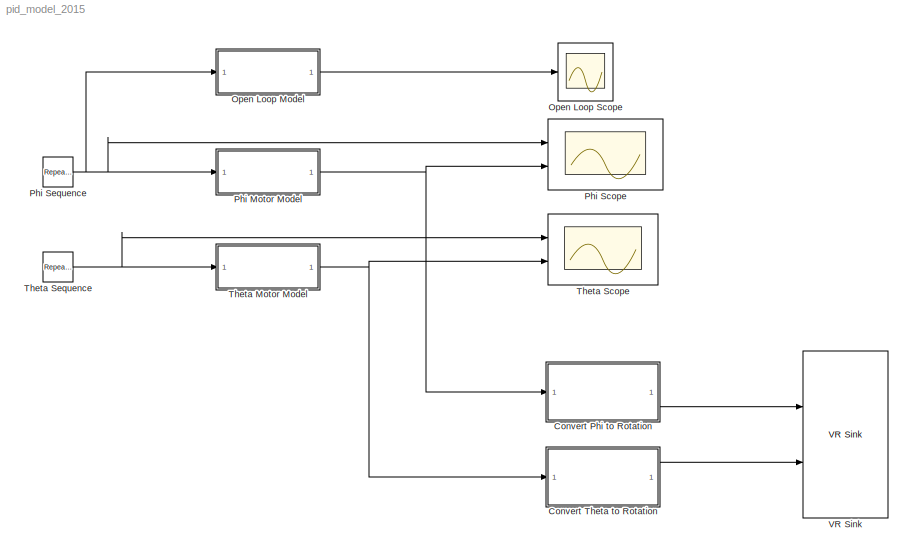
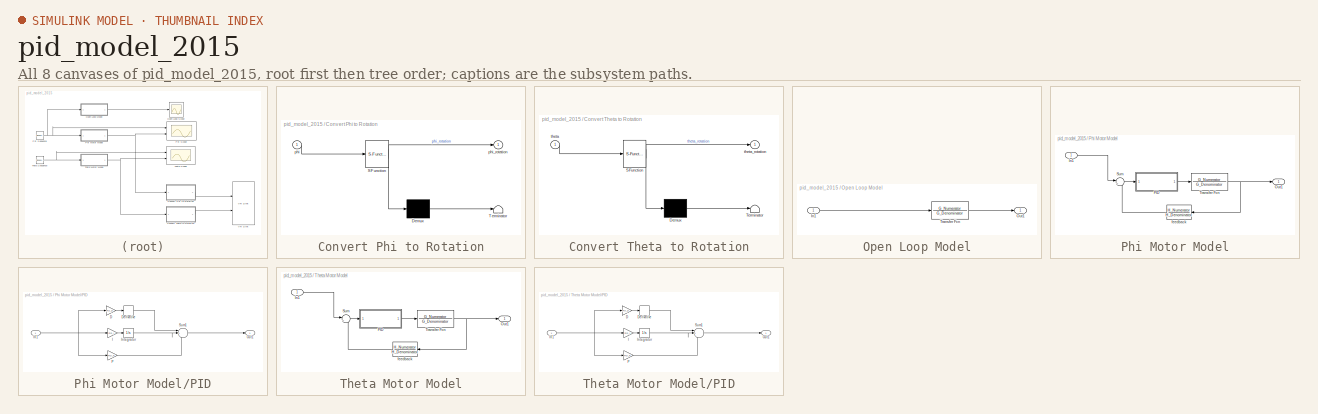
[diagram: thumbnail index - all 8 canvases of the model, root first then tree order]
MODEL pid_model_2015
KIND model
BLOCK [SubSystem] Convert Phi to Rotation
  ErrorFcn = Stateflow.Translate.translate
  PermitHierarchicalResolution = ParametersOnly
  Ports = [1, 1]
  RequestExecContextInheritance = off
  SFBlockType = MATLAB Function
  SID = 94
  TreatAsAtomicUnit = on
  Variant = off
BLOCK [Demux] Convert Phi to Rotation/ Demux 
  Outputs = 1
  Ports = [1, 1]
  SID = 94::28
BLOCK [S-Function] Convert Phi to Rotation/ SFunction 
  EnableBusSupport = on
  FunctionName = sf_sfun
  PortCounts = [1 2]
  Ports = [1, 2]
  SFunctionDeploymentMode = off
  SID = 94::27
  Tag = Stateflow S-Function pid_model_2015 1
BLOCK [Terminator] Convert Phi to Rotation/ Terminator 
  SID = 94::29
BLOCK [Inport] Convert Phi to Rotation/phi
  IconDisplay = Port number
  SID = 94::1
BLOCK [Outport] Convert Phi to Rotation/phi_rotation
  IconDisplay = Port number
  SID = 94::5
BLOCK [SubSystem] Convert Theta to Rotation
  ErrorFcn = Stateflow.Translate.translate
  PermitHierarchicalResolution = ParametersOnly
  Ports = [1, 1]
  RequestExecContextInheritance = off
  SFBlockType = MATLAB Function
  SID = 106
  TreatAsAtomicUnit = on
  Variant = off
BLOCK [Demux] Convert Theta to Rotation/ Demux 
  Outputs = 1
  Ports = [1, 1]
  SID = 106::28
BLOCK [S-Function] Convert Theta to Rotation/ SFunction 
  EnableBusSupport = on
  FunctionName = sf_sfun
  PortCounts = [1 2]
  Ports = [1, 2]
  SFunctionDeploymentMode = off
  SID = 106::27
  Tag = Stateflow S-Function pid_model_2015 2
BLOCK [Terminator] Convert Theta to Rotation/ Terminator 
  SID = 106::29
BLOCK [Inport] Convert Theta to Rotation/theta
  IconDisplay = Port number
  SID = 106::1
BLOCK [Outport] Convert Theta to Rotation/theta_rotation
  IconDisplay = Port number
  SID = 106::5
BLOCK [SubSystem] Open Loop Model
  Ports = [1, 1]
  RequestExecContextInheritance = off
  SID = 49
  Variant = off
BLOCK [Inport] Open Loop Model/In1
  IconDisplay = Port number
  SID = 50
BLOCK [Outport] Open Loop Model/Out1
  IconDisplay = Port number
  SID = 55
BLOCK [TransferFcn] Open Loop Model/Transfer Fcn
  Denominator = G_Denominator
  Numerator = G_Numerator
  SID = 53
BLOCK [Scope] Open Loop Scope
  DataFormat = Array
  Decimation = 1
  Grid = on
  LimitDataPoints = on
  MaxDataPoints = 5000
  NumInputPorts = 1
  Ports = [1]
  SID = 92
  SampleInput = off
  SampleTime = -1
  SaveName = ScopeData2
  SaveToWorkspace = off
  ShowLegends = off
  TickLabels = OneTimeTick
  TimeRange = auto
  YMax = 10
  YMin = -10
  ZoomMode = on
BLOCK [SubSystem] Phi Motor Model
  Ports = [1, 1]
  RequestExecContextInheritance = off
  SID = 28
  Variant = off
BLOCK [Inport] Phi Motor Model/In1
  IconDisplay = Port number
  SID = 29
BLOCK [Outport] Phi Motor Model/Out1
  IconDisplay = Port number
  SID = 34
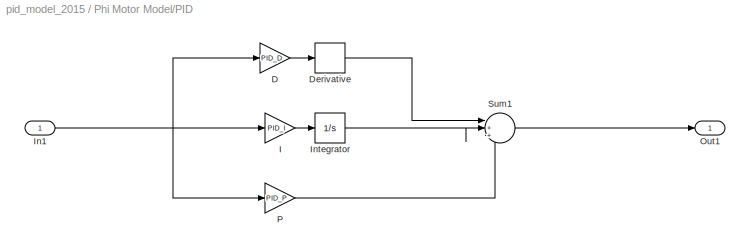
BLOCK [SubSystem] Phi Motor Model/PID
  Ports = [1, 1]
  RequestExecContextInheritance = off
  SID = 73
  Variant = off
BLOCK [Gain] Phi Motor Model/PID/D
  Gain = PID_D
  OutDataTypeStr = Inherit: Inherit via internal rule
  ParamDataTypeStr = Inherit: Inherit via internal rule
  SID = 76
  SaturateOnIntegerOverflow = off
BLOCK [Derivative] Phi Motor Model/PID/Derivative
  SID = 77
BLOCK [Gain] Phi Motor Model/PID/I
  Gain = PID_I
  OutDataTypeStr = Inherit: Inherit via internal rule
  ParamDataTypeStr = Inherit: Inherit via internal rule
  SID = 78
  SaturateOnIntegerOverflow = off
BLOCK [Inport] Phi Motor Model/PID/In1
  IconDisplay = Port number
  SID = 74
BLOCK [Integrator] Phi Motor Model/PID/Integrator
  Ports = [1, 1]
  SID = 79
BLOCK [Outport] Phi Motor Model/PID/Out1
  IconDisplay = Port number
  SID = 75
BLOCK [Gain] Phi Motor Model/PID/P
  Gain = PID_P
  OutDataTypeStr = Inherit: Inherit via internal rule
  ParamDataTypeStr = Inherit: Inherit via internal rule
  SID = 80
  SaturateOnIntegerOverflow = off
BLOCK [Sum] Phi Motor Model/PID/Sum1
  IconShape = round
  InputSameDT = off
  Inputs = |+++
  OutDataTypeStr = Inherit: Inherit via internal rule
  Ports = [3, 1]
  SID = 81
  SaturateOnIntegerOverflow = off
BLOCK [Sum] Phi Motor Model/Sum
  IconShape = round
  InputSameDT = off
  Inputs = |+-
  OutDataTypeStr = Inherit: Inherit via internal rule
  Ports = [2, 1]
  SID = 31
  SaturateOnIntegerOverflow = off
BLOCK [TransferFcn] Phi Motor Model/Transfer Fcn
  Denominator = G_Denominator
  Numerator = G_Numerator
  SID = 32
BLOCK [TransferFcn] Phi Motor Model/feedback
  Denominator = H_Denominator
  Numerator = H_Numerator
  SID = 33
BLOCK [Scope] Phi Scope
  DataFormat = StructureWithTime
  Decimation = 1
  Grid = on
  LimitDataPoints = off
  MaxDataPoints = 5000
  NumInputPorts = 2
  Ports = [2]
  SID = 39
  SampleInput = off
  SampleTime = -1
  SaveName = ScopeData
  SaveToWorkspace = off
  ShowLegends = on
  TickLabels = OneTimeTick
  TimeRange = auto
  YMax = 20.81028~5
  YMin = -2.31225~-5
  ZoomMode = on
BLOCK [Reference] Phi Sequence  REF=simulink/Sources/Repeating\nSequence\nStair
  ConRadixGroup = Best Precision: Vector-wise
  LockScale = off
  OutDataType = fixdt(0,8)
  OutDataTypeStr = double
  OutMax = []
  OutMin = []
  OutScaling = 2^-12
  OutValues = phi_inputs
  OutputDataTypeScalingMode = double
  Ports = [0, 1]
  SID = 63
  SourceBlock = simulink/Sources/Repeating\nSequence\nStair
  SourceType = Repeating Sequence Stair
  tsamp = settling_time + observation_time
BLOCK [SubSystem] Theta Motor Model
  Ports = [1, 1]
  RequestExecContextInheritance = off
  SID = 41
  Variant = off
BLOCK [Inport] Theta Motor Model/In1
  IconDisplay = Port number
  SID = 42
BLOCK [Outport] Theta Motor Model/Out1
  IconDisplay = Port number
  SID = 47
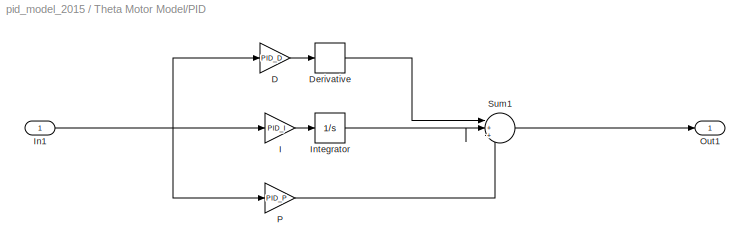
BLOCK [SubSystem] Theta Motor Model/PID
  Ports = [1, 1]
  RequestExecContextInheritance = off
  SID = 82
  Variant = off
BLOCK [Gain] Theta Motor Model/PID/D
  Gain = PID_D
  OutDataTypeStr = Inherit: Inherit via internal rule
  ParamDataTypeStr = Inherit: Inherit via internal rule
  SID = 84
  SaturateOnIntegerOverflow = off
BLOCK [Derivative] Theta Motor Model/PID/Derivative
  SID = 85
BLOCK [Gain] Theta Motor Model/PID/I
  Gain = PID_I
  OutDataTypeStr = Inherit: Inherit via internal rule
  ParamDataTypeStr = Inherit: Inherit via internal rule
  SID = 86
  SaturateOnIntegerOverflow = off
BLOCK [Inport] Theta Motor Model/PID/In1
  IconDisplay = Port number
  SID = 83
BLOCK [Integrator] Theta Motor Model/PID/Integrator
  Ports = [1, 1]
  SID = 87
BLOCK [Outport] Theta Motor Model/PID/Out1
  IconDisplay = Port number
  SID = 90
BLOCK [Gain] Theta Motor Model/PID/P
  Gain = PID_P
  OutDataTypeStr = Inherit: Inherit via internal rule
  ParamDataTypeStr = Inherit: Inherit via internal rule
  SID = 88
  SaturateOnIntegerOverflow = off
BLOCK [Sum] Theta Motor Model/PID/Sum1
  IconShape = round
  InputSameDT = off
  Inputs = |+++
  OutDataTypeStr = Inherit: Inherit via internal rule
  Ports = [3, 1]
  SID = 89
  SaturateOnIntegerOverflow = off
BLOCK [Sum] Theta Motor Model/Sum
  IconShape = round
  InputSameDT = off
  Inputs = |+-
  OutDataTypeStr = Inherit: Inherit via internal rule
  Ports = [2, 1]
  SID = 44
  SaturateOnIntegerOverflow = off
BLOCK [TransferFcn] Theta Motor Model/Transfer Fcn
  Denominator = G_Denominator
  Numerator = G_Numerator
  SID = 45
BLOCK [TransferFcn] Theta Motor Model/feedback
  Denominator = H_Denominator
  Numerator = H_Numerator
  SID = 46
BLOCK [Scope] Theta Scope
  DataFormat = StructureWithTime
  Decimation = 1
  Grid = on
  LimitDataPoints = off
  MaxDataPoints = 5000
  NumInputPorts = 2
  Ports = [2]
  SID = 65
  SampleInput = off
  SampleTime = -1
  SaveName = ScopeData1
  SaveToWorkspace = off
  ShowLegends = on
  TickLabels = OneTimeTick
  TimeRange = auto
  YMax = 300.59293~5
  YMin = -33.39921~-5
  ZoomMode = on
BLOCK [Reference] Theta Sequence  REF=simulink/Sources/Repeating\nSequence\nStair
  ConRadixGroup = Best Precision: Vector-wise
  LockScale = off
  OutDataType = fixdt(0,8)
  OutDataTypeStr = double
  OutMax = []
  OutMin = []
  OutScaling = 2^-12
  OutValues = theta_inputs
  OutputDataTypeScalingMode = double
  Ports = [0, 1]
  SID = 64
  SourceBlock = simulink/Sources/Repeating\nSequence\nStair
  SourceType = Repeating Sequence Stair
  tsamp = settling_time + observation_time
BLOCK [Reference] VR Sink  REF=vrlib/VR Sink
  AllowVariableSize = off
  AutoView = off
  FieldsWritten = Phi.rotation.4.1.1.double#Theta.rotation.4.1.1.double
  InstantiateOnLoad = on
  Ports = [2]
  RemoteChange = off
  RemoteView = off
  SID = 112
  SampleTime = 0.1
  SourceBlock = vrlib/VR Sink
  SourceType = Virtual Reality Sink
  VideoDimensions = []
  ViewEnable = on
  WorldFileName = vr_animation.wrl
LINE Convert Phi to Rotation/ Demux :1 -> Convert Phi to Rotation/ Terminator :1
LINE Convert Phi to Rotation/ SFunction :1 -> Convert Phi to Rotation/ Demux :1
LINE Convert Phi to Rotation/ SFunction :2 -> Convert Phi to Rotation/phi_rotation:1
LINE Convert Phi to Rotation/phi:1 -> Convert Phi to Rotation/ SFunction :1
LINE Convert Phi to Rotation:1 -> VR Sink:1
LINE Convert Theta to Rotation/ Demux :1 -> Convert Theta to Rotation/ Terminator :1
LINE Convert Theta to Rotation/ SFunction :1 -> Convert Theta to Rotation/ Demux :1
LINE Convert Theta to Rotation/ SFunction :2 -> Convert Theta to Rotation/theta_rotation:1
LINE Convert Theta to Rotation/theta:1 -> Convert Theta to Rotation/ SFunction :1
LINE Convert Theta to Rotation:1 -> VR Sink:2
LINE Open Loop Model/In1:1 -> Open Loop Model/Transfer Fcn:1
LINE Open Loop Model/Transfer Fcn:1 -> Open Loop Model/Out1:1
LINE Open Loop Model:1 -> Open Loop Scope:1
LINE Phi Motor Model/In1:1 -> Phi Motor Model/Sum:1
LINE Phi Motor Model/PID/D:1 -> Phi Motor Model/PID/Derivative:1
LINE Phi Motor Model/PID/Derivative:1 -> Phi Motor Model/PID/Sum1:1
LINE Phi Motor Model/PID/I:1 -> Phi Motor Model/PID/Integrator:1
NET Phi Motor Model/PID/In1:1 -> Phi Motor Model/PID/D:1, Phi Motor Model/PID/I:1, Phi Motor Model/PID/P:1
LINE Phi Motor Model/PID/Integrator:1 -> Phi Motor Model/PID/Sum1:2
LINE Phi Motor Model/PID/P:1 -> Phi Motor Model/PID/Sum1:3
LINE Phi Motor Model/PID/Sum1:1 -> Phi Motor Model/PID/Out1:1
LINE Phi Motor Model/PID:1 -> Phi Motor Model/Transfer Fcn:1
LINE Phi Motor Model/Sum:1 -> Phi Motor Model/PID:1
NET Phi Motor Model/Transfer Fcn:1 -> Phi Motor Model/Out1:1, Phi Motor Model/feedback:1
LINE Phi Motor Model/feedback:1 -> Phi Motor Model/Sum:2
NET Phi Motor Model:1 -> Convert Phi to Rotation:1, Phi Scope:2
NET Phi Sequence:1 -> Open Loop Model:1, Phi Motor Model:1, Phi Scope:1
LINE Theta Motor Model/In1:1 -> Theta Motor Model/Sum:1
LINE Theta Motor Model/PID/D:1 -> Theta Motor Model/PID/Derivative:1
LINE Theta Motor Model/PID/Derivative:1 -> Theta Motor Model/PID/Sum1:1
LINE Theta Motor Model/PID/I:1 -> Theta Motor Model/PID/Integrator:1
NET Theta Motor Model/PID/In1:1 -> Theta Motor Model/PID/D:1, Theta Motor Model/PID/I:1, Theta Motor Model/PID/P:1
LINE Theta Motor Model/PID/Integrator:1 -> Theta Motor Model/PID/Sum1:2
LINE Theta Motor Model/PID/P:1 -> Theta Motor Model/PID/Sum1:3
LINE Theta Motor Model/PID/Sum1:1 -> Theta Motor Model/PID/Out1:1
LINE Theta Motor Model/PID:1 -> Theta Motor Model/Transfer Fcn:1
LINE Theta Motor Model/Sum:1 -> Theta Motor Model/PID:1
NET Theta Motor Model/Transfer Fcn:1 -> Theta Motor Model/Out1:1, Theta Motor Model/feedback:1
LINE Theta Motor Model/feedback:1 -> Theta Motor Model/Sum:2
NET Theta Motor Model:1 -> Convert Theta to Rotation:1, Theta Scope:2
NET Theta Sequence:1 -> Theta Motor Model:1, Theta Scope:1
note: NET lines group one-source signal fan-out (src -> all destinations, sorted); 1:1 wires keep LINE
CHART Convert Phi to Rotation states=1 transitions=1
  STATE_LABEL 'eML_blk_kernel()'
CHART Convert Theta to Rotation states=1 transitions=1
  STATE_LABEL 'eML_blk_kernel()'
